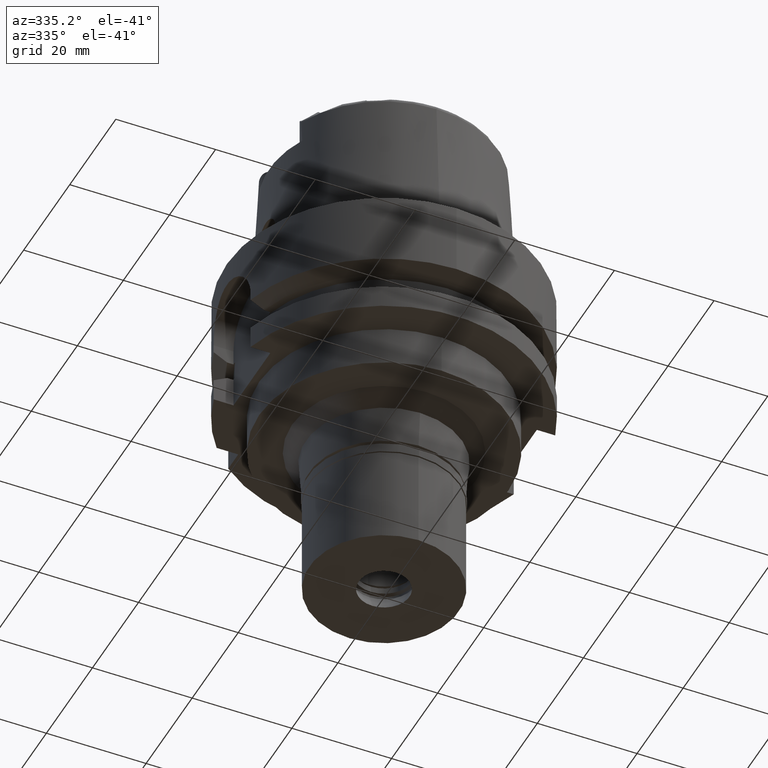
[diagram: clean part render]
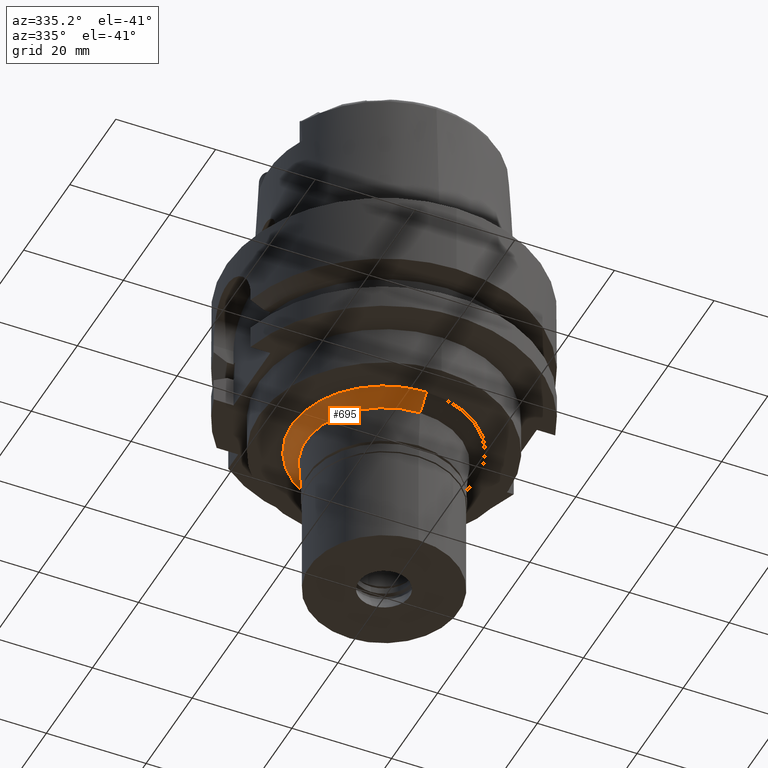
[diagram: same view with one face highlighted and labeled with its STEP entity id]
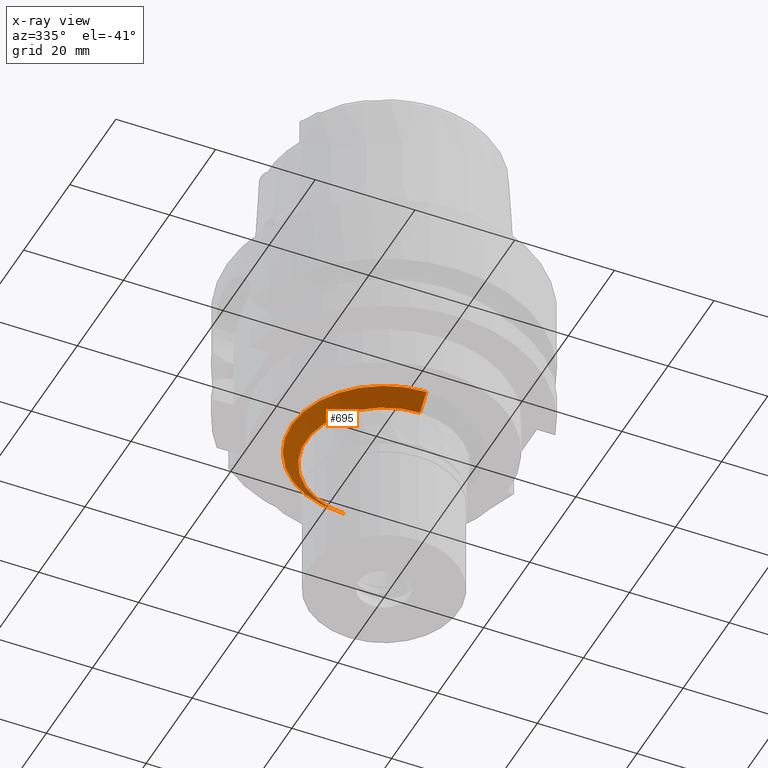
[diagram: x-ray of the same camera — body ghosted, the highlighted face saturated]
A machine part, auxiliary view. The second image highlights one B-rep face of the part: STEP entity #695.
The next image is the same camera in x-ray: the body ghosted, the highlighted face saturated — about 3% of this face is hidden behind the body in this view.
In plain terms, the highlighted conical surface has half-angle 45 deg.
Its self-contained STEP definition (entity closure, byte-faithful):
#20 = VERTEX_POINT ( 'NONE', #5517 ) ;
#22 = AXIS2_PLACEMENT_3D ( 'NONE', #2305, #2755, #4572 ) ;
#214 = CARTESIAN_POINT ( 'NONE',  ( 0.0000000000000000000, -18.44741611008999982, -34.00000000000000000 ) ) ;
#534 = CARTESIAN_POINT ( 'NONE',  ( 0.0000000000000000000, -15.64741611009000088, -36.79999999999999716 ) ) ;
#695 = ADVANCED_FACE ( 'NONE', ( #4907 ), #2919, .T. ) ;
#982 = DIRECTION ( 'NONE',  ( 0.0000000000000000000, -1.000000000000000000, 0.0000000000000000000 ) ) ;
#1239 = AXIS2_PLACEMENT_3D ( 'NONE', #4714, #5499, #2493 ) ;
#1245 = EDGE_CURVE ( 'NONE', #20, #4160, #2016, .T. ) ;
#1523 = VERTEX_POINT ( 'NONE', #4131 ) ;
#1735 = EDGE_CURVE ( 'NONE', #4160, #2236, #3699, .T. ) ;
#1752 = VECTOR ( 'NONE', #4110, 1000.000000000000000 ) ;
#2016 = LINE ( 'NONE', #214, #2763 ) ;
#2033 = EDGE_CURVE ( 'NONE', #1523, #2236, #4925, .T. ) ;
#2236 = VERTEX_POINT ( 'NONE', #5545 ) ;
#2305 = CARTESIAN_POINT ( 'NONE',  ( 0.0000000000000000000, 0.0000000000000000000, -35.39999999999999858 ) ) ;
#2493 = DIRECTION ( 'NONE',  ( 0.0000000000000000000, -1.000000000000000000, 0.0000000000000000000 ) ) ;
#2677 = ORIENTED_EDGE ( 'NONE', *, *, #3829, .T. ) ;
#2718 = CARTESIAN_POINT ( 'NONE',  ( 0.0000000000000000000, 18.44741611008999982, -34.00000000000000000 ) ) ;
#2755 = DIRECTION ( 'NONE',  ( 0.0000000000000000000, 0.0000000000000000000, 1.000000000000000000 ) ) ;
#2763 = VECTOR ( 'NONE', #3263, 1000.000000000000000 ) ;
#2919 = CONICAL_SURFACE ( 'NONE', #22, 17.04741611009000124, 0.7853981633972997312 ) ;
#2937 = ORIENTED_EDGE ( 'NONE', *, *, #1735, .F. ) ;
#3147 = DIRECTION ( 'NONE',  ( 0.0000000000000000000, 0.0000000000000000000, -1.000000000000000000 ) ) ;
#3263 = DIRECTION ( 'NONE',  ( 0.0000000000000000000, 0.7071067811860975993, -0.7071067811869975461 ) ) ;
#3264 = ORIENTED_EDGE ( 'NONE', *, *, #2033, .T. ) ;
#3699 = CIRCLE ( 'NONE', #1239, 15.64741611009000088 ) ;
#3829 = EDGE_CURVE ( 'NONE', #20, #1523, #5220, .T. ) ;
#3982 = EDGE_LOOP ( 'NONE', ( #2937, #4924, #2677, #3264 ) ) ;
#4110 = DIRECTION ( 'NONE',  ( 0.0000000000000000000, -0.7071067811860975993, -0.7071067811869975461 ) ) ;
#4131 = CARTESIAN_POINT ( 'NONE',  ( 0.0000000000000000000, 18.44741611008999982, -34.00000000000000000 ) ) ;
#4160 = VERTEX_POINT ( 'NONE', #534 ) ;
#4469 = CARTESIAN_POINT ( 'NONE',  ( 0.0000000000000000000, 0.0000000000000000000, -34.00000000000000000 ) ) ;
#4572 = DIRECTION ( 'NONE',  ( 0.0000000000000000000, 1.000000000000000000, 0.0000000000000000000 ) ) ;
#4714 = CARTESIAN_POINT ( 'NONE',  ( 0.0000000000000000000, 0.0000000000000000000, -36.79999999999999716 ) ) ;
#4907 = FACE_OUTER_BOUND ( 'NONE', #3982, .T. ) ;
#4924 = ORIENTED_EDGE ( 'NONE', *, *, #1245, .F. ) ;
#4925 = LINE ( 'NONE', #2718, #1752 ) ;
#5220 = CIRCLE ( 'NONE', #5485, 18.44741611008999982 ) ;
#5485 = AXIS2_PLACEMENT_3D ( 'NONE', #4469, #3147, #982 ) ;
#5499 = DIRECTION ( 'NONE',  ( 0.0000000000000000000, 0.0000000000000000000, -1.000000000000000000 ) ) ;
#5517 = CARTESIAN_POINT ( 'NONE',  ( 0.0000000000000000000, -18.44741611008999982, -34.00000000000000000 ) ) ;
#5545 = CARTESIAN_POINT ( 'NONE',  ( 0.0000000000000000000, 15.64741611009000088, -36.79999999999999716 ) ) ;